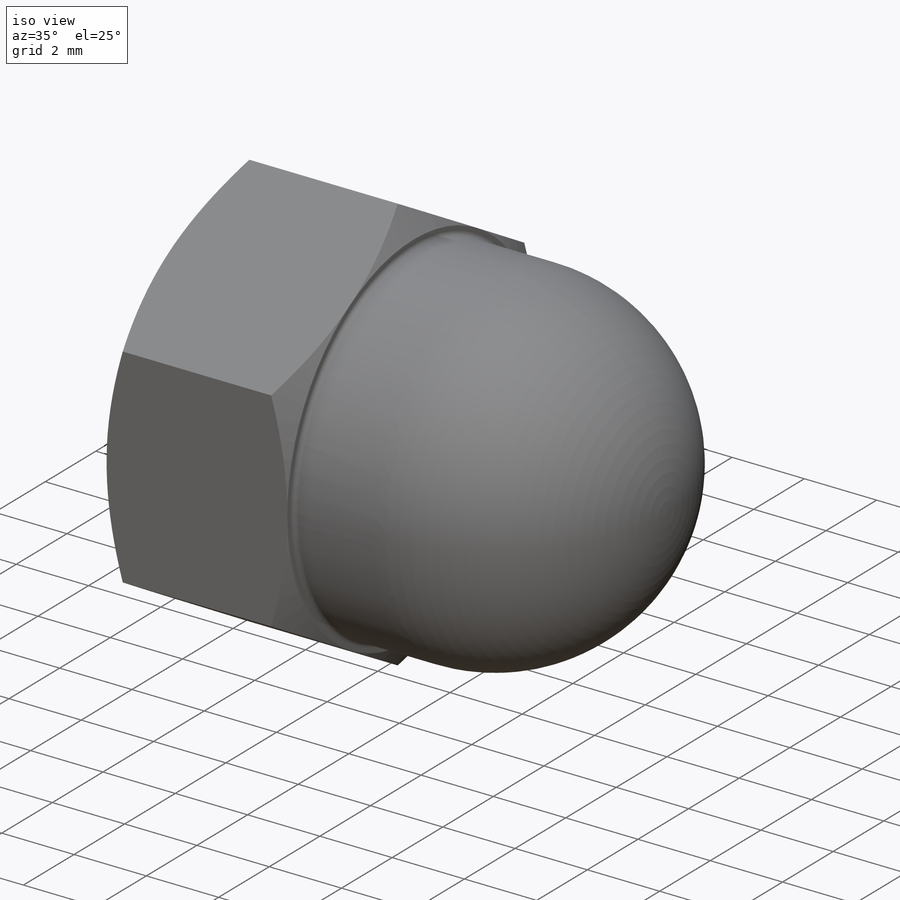
[diagram: iso view]
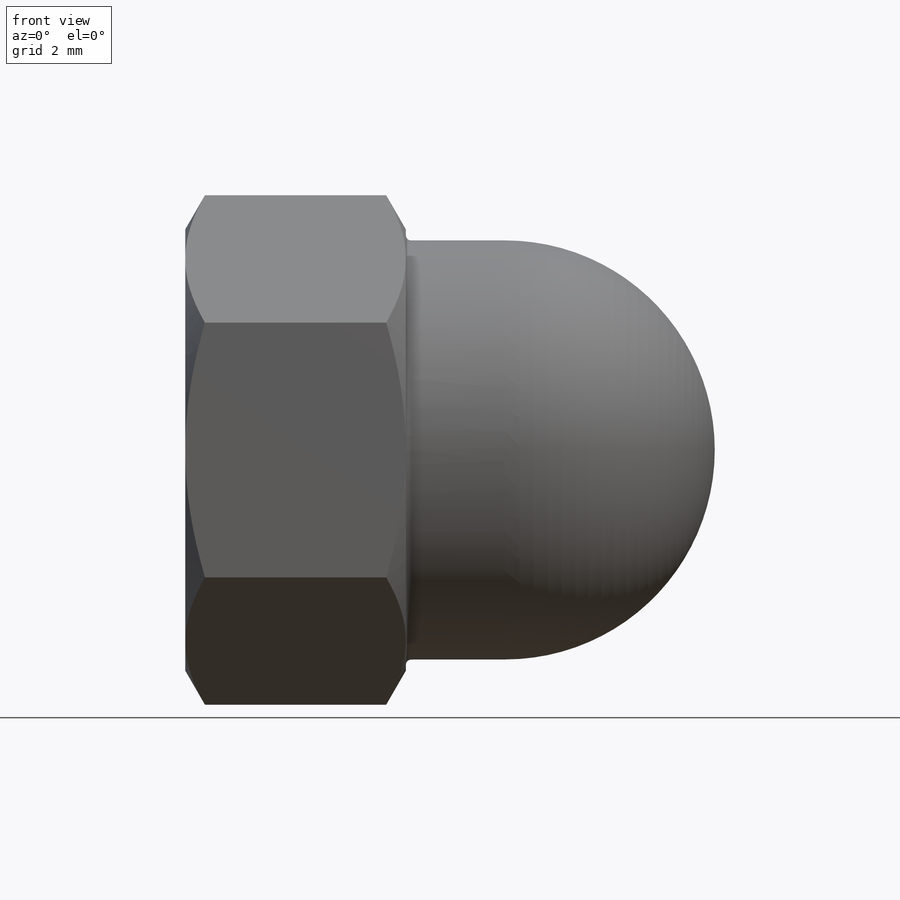
[diagram: front view]
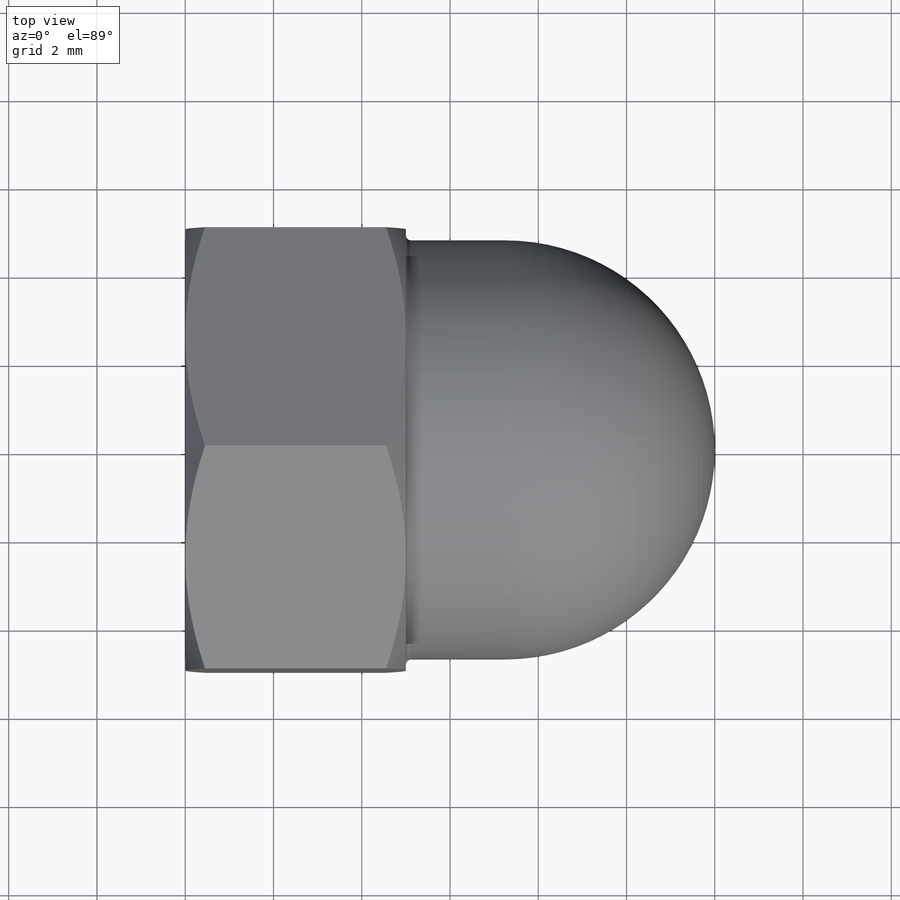
[diagram: top view]
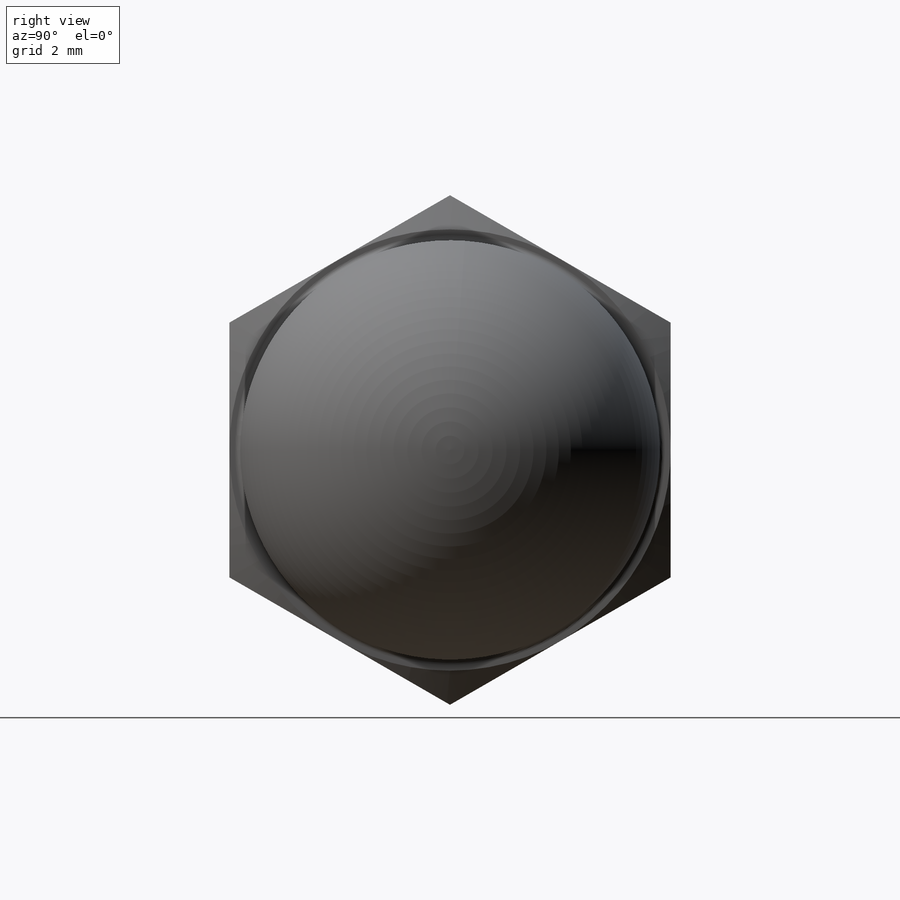
[diagram: right view]
SOLIDWORKS PART (.sldprt)
format: sldprt  version: not decoded by parser v0  size: 474,112 bytes
history: native  units: mm
features: sketch x7, cut_revolve x5, fillet x4, plane x3, material x1, extrude x1, revolve x1, thread x1, pattern_linear x1 (+12 scaffold rows collapsed; 1 parser-record rows omitted)
feature tree (37):
  parser-record x1  (decoder bookkeeping rows leaked as tree rows — omitted from the tree; the rows remain in map.json)
  scaffold x12  (default folders/planes/origin — collapsed)
  material  "Material <not specified>"
  plane  "Plane1"
  plane  "Plane2"
  plane  "Plane3"
  sketch  "BaseNutSke"  dims[c1.Thread_min=21.6154mm c1.D1=50.8mm c2.D1=30.0deg c2.D2=~24.797543mm c3.D2=60.0deg c3.D3=50.8mm c4.D3=30.0deg c4.D4=~24.797543mm c5.D4=60.0deg c6.D4=~24.797543mm c7.D4=60.0deg c8.D4=~24.797543mm c9.D4=60.0deg c9.Width_flats=10.0mm c9.D1=~21.475302mm c9.D2=~21.475302mm c10.D1=~21.475302mm c10.D2=19.05mm c10.D3=19.05mm c11.D1=~24.797543mm c12.D1=120.0deg c13.D1=~23.397294mm c14.D1=120.0deg c14.D2=5.0mm c14.D3=5.0mm c14.D4=~21.080502mm c15.D4=120.0deg c15.D5=~21.080502mm c16.D5=120.0deg c16.D4=~21.080502mm c17.D4=60.0deg]
  extrude  "BaseNut"  Depth=5mm Hex_ht=5mm
  sketch  "DomeSke"  dims[c1.Nose_radius=9.144mm c1.Body_radius=20.574mm c1.D4=0.7874mm c1.Dome_rad=4.75mm c1.Overall_ht=12.0mm c1.Body_dia=35.814mm c1.D3=9.144mm c2.D4=0.7874mm c2.D1=~19.111504mm]
  revolve  "Dome"  Angle=360deg
  sketch  "Sketch4"  dims[c1.D8=0.7874mm c1.D1=~7.533717mm c2.D1=30.0deg c2.D2=~7.533808mm c3.D2=30.0deg c3.D3=2.0mm c3.D4=2.0mm c3.D5=18.1229mm c3.D6=15.0mm c3.D7=5.0mm c4.D5=~0.833333mm]
  cut_revolve  "DoubleChamfer"  Angle=360deg
  sketch  "TapDriSke"  dims[c1.D1=~7.099516mm c1.TPA=118.0deg c1.Thread_min=5.0mm c1.Drill_depth=28.448mm c1.Drill_clr=2.0mm c2.Drill_depth=8.2mm]
  cut_revolve  "TapDrill"  [1 undecoded]
  thread  "ThreadCosmetic"  [2 undecoded]
  cut_revolve  "EndChamfer"  [1 undecoded]
  sketch  "EndChamferSketch"  dims[c1.D1=0.0508mm c1.D2=6.35mm c2.D2=35.0deg c2.ChamferDepth=5.08mm c3.ChamferDepth=~18.988496mm c3.D2=~3.678098mm c4.D2=35.0deg c4.ChamferDepth=0.55mm c4.ThreadMajor=3.0mm c4.D3=0.0254mm c4.D1=360.0deg c4.Thread_depth=~5.998675mm c4.Thread_nominal=6.0mm]
  cut_revolve  "Undercut"  [1 undecoded]
  sketch  "UcutSke"  dims[c1.Groove_wid=9.3mm c1.D1=2.0mm c1.Ucut_dia=6.06mm c1.Ucut_dep=7.71mm c2.D1=0.5mm c2.D2=9.3mm c3.D2=240.0deg c3.Ucut_wid=2.0mm c3.D1=360.0deg c4.D1=360.0deg]
  sketch  "ThdSchSke"  dims[c1.D1=~4.490128mm c2.D1=90.0deg c3.D1=~4.490128mm c3.VeeAngle=70.0deg c4.D1=9.525mm c5.D1=245.0deg c6.D1=9.525mm c7.D1=115.0deg c8.D1=~4.490128mm c9.D1=245.0deg c10.D1=~4.490128mm c10.SideAngle=55.0deg c10.Thread_major=25.4mm c10.Tap_drill=22.225mm c10.OverCut=11.1125mm c11.D1=0.0381mm c11.Advance=1.0mm c11.Thread_major=6.0mm c11.Tap_drill=5.0mm c11.OverCut=2.5mm]
  cut_revolve  "ThreadSchematic"  Angle=360deg
  pattern_linear  "ThdSchPat"  Count1=7 Count2=1 Spacing1=0.999446mm Spacing2=50mm Num_threads=7 Advance=0.999446mm
  fillet  "DomeFillet"  Radius=0.12mm
  fillet  "ConfigurationName"  Radius=1 CopiedFlag=1
  fillet  "PartNumberID"  [1 undecoded]
  fillet  "ConfigurationName"  Radius=0 CopiedFlag=0
decode coverage: 15 of 20 modeling features carry decoded parameters
note: ~ marks probable driven/reference dimensions
note: 6 parameter values undecoded
summary: no parameter record found for 5 features
note: suppression state not decoded; provenance and decode notes live in map.json
